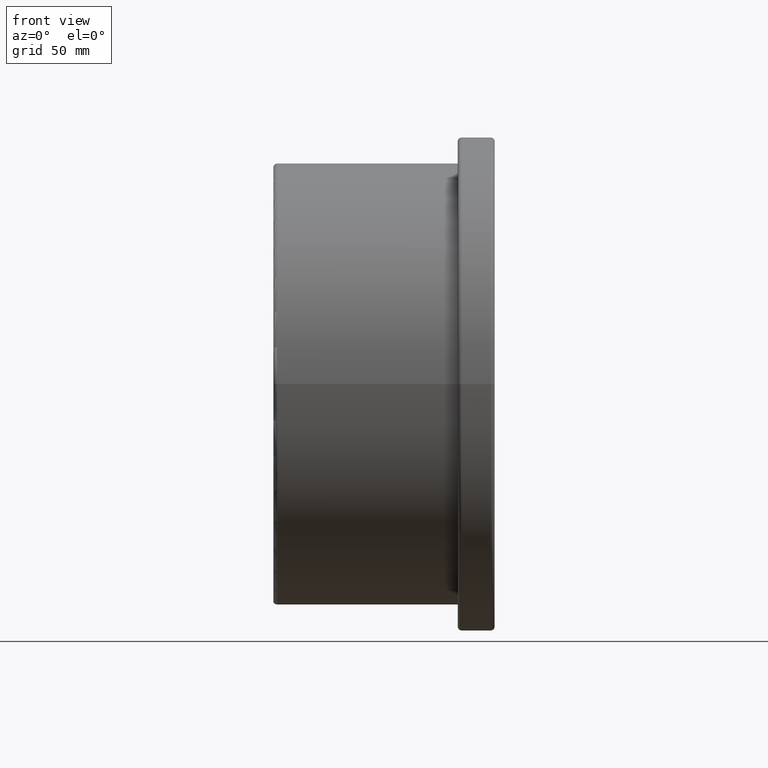
[diagram: clean part render]
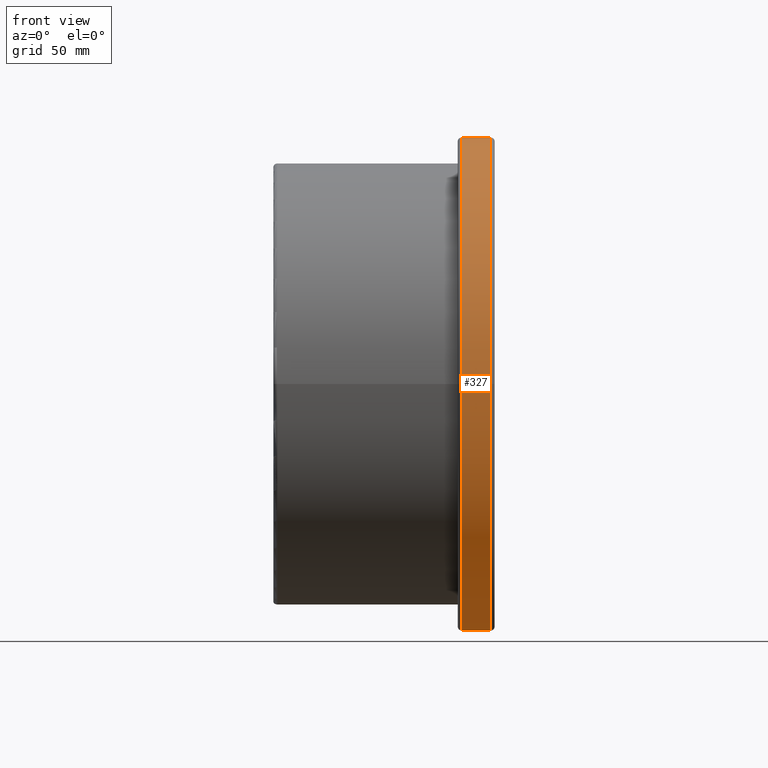
[diagram: same view with one face highlighted and labeled with its STEP entity id]
A machine part, front view. The second image highlights one B-rep face of the part: STEP entity #327.
In plain terms, the highlighted cylindrical surface (bore or boss wall) has radius 127 mm, axis along (-1, 0, 0).
Its self-contained STEP definition (entity closure, byte-faithful):
#22=CYLINDRICAL_SURFACE('',#371,127.);
#60=FACE_BOUND('',#134,.T.);
#88=FACE_OUTER_BOUND('',#133,.T.);
#133=EDGE_LOOP('',(#283));
#134=EDGE_LOOP('',(#284));
#163=CIRCLE('',#370,127.);
#164=CIRCLE('',#372,127.);
#191=VERTEX_POINT('',#2354);
#192=VERTEX_POINT('',#2357);
#224=EDGE_CURVE('',#191,#191,#163,.T.);
#225=EDGE_CURVE('',#192,#192,#164,.T.);
#283=ORIENTED_EDGE('',*,*,#225,.F.);
#284=ORIENTED_EDGE('',*,*,#224,.F.);
#327=ADVANCED_FACE('',(#88,#60),#22,.T.);
#370=AXIS2_PLACEMENT_3D('',#2355,#453,#454);
#371=AXIS2_PLACEMENT_3D('',#2356,#455,#456);
#372=AXIS2_PLACEMENT_3D('',#2358,#457,#458);
#453=DIRECTION('center_axis',(1.,0.,0.));
#454=DIRECTION('ref_axis',(0.,1.,6.12323399573676E-17));
#455=DIRECTION('center_axis',(-1.,0.,0.));
#456=DIRECTION('ref_axis',(0.,-1.,0.));
#457=DIRECTION('center_axis',(-1.,0.,0.));
#458=DIRECTION('ref_axis',(0.,1.,6.12323399573676E-17));
#2354=CARTESIAN_POINT('',(112.,-127.,-2.33295215237571E-14));
#2355=CARTESIAN_POINT('Origin',(112.,0.,0.));
#2356=CARTESIAN_POINT('Origin',(104.5,0.,0.));
#2357=CARTESIAN_POINT('',(97.,-127.,7.77650717458569E-15));
#2358=CARTESIAN_POINT('Origin',(97.,0.,0.));